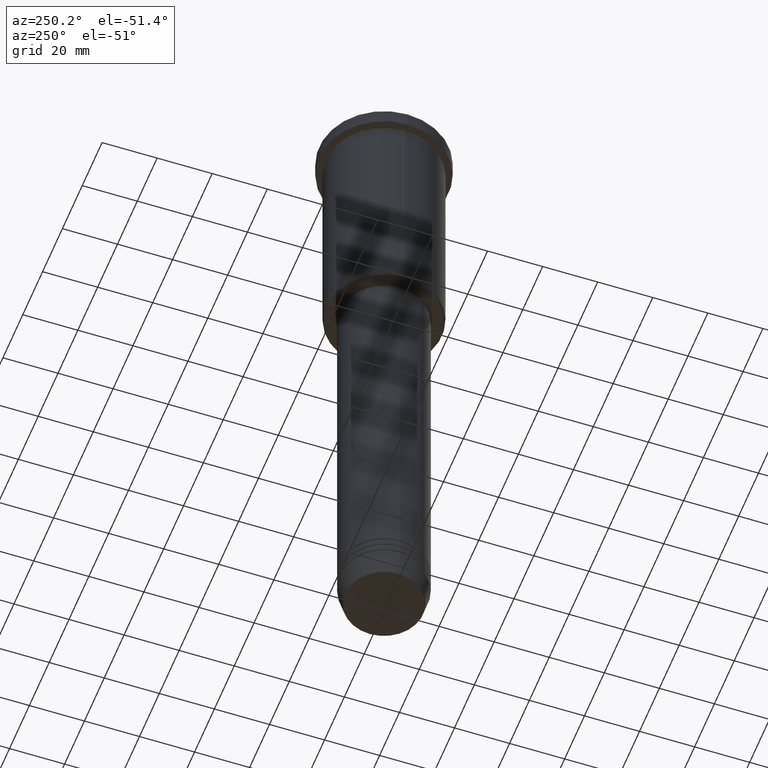
[diagram: clean part render]
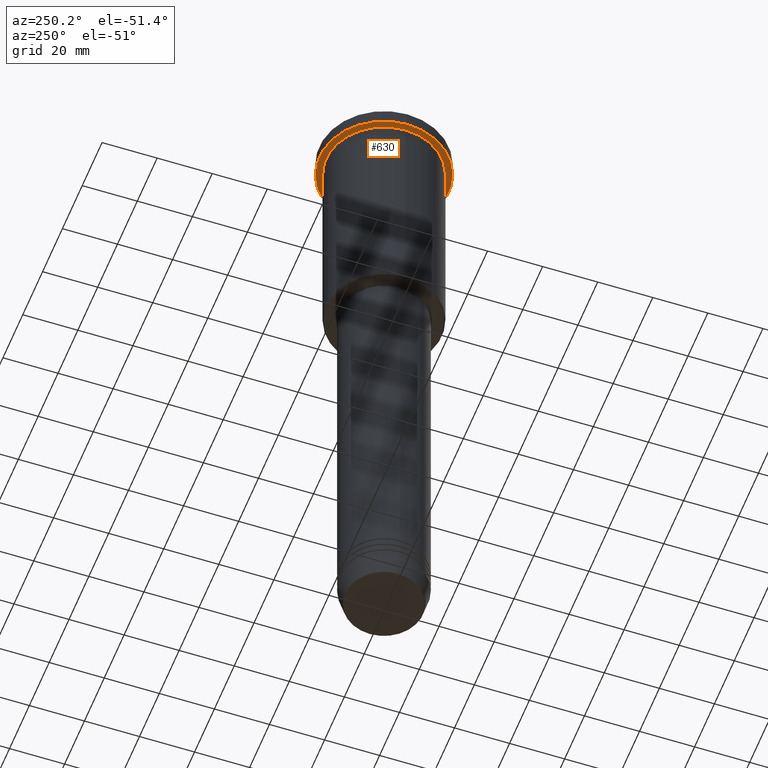
[diagram: same view with one face highlighted and labeled with its STEP entity id]
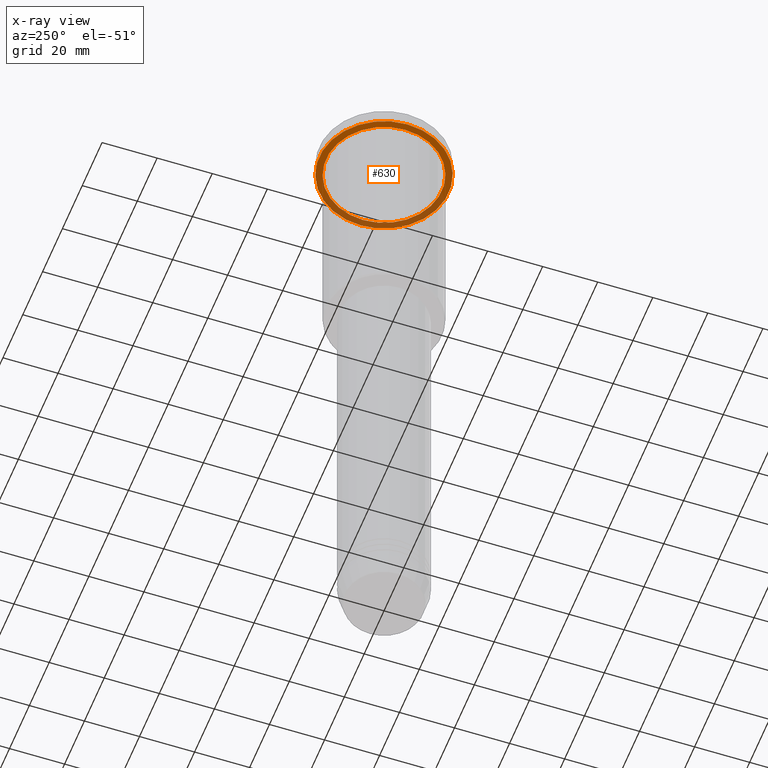
[diagram: x-ray of the same camera — body ghosted, the highlighted face saturated]
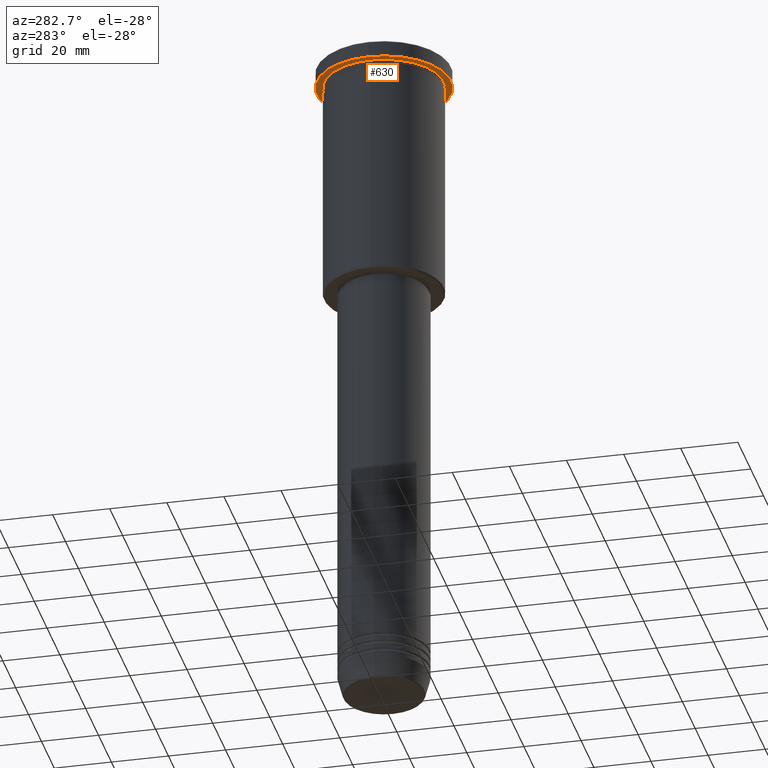
[diagram: same view with one face highlighted and labeled with its STEP entity id]
A machine part, auxiliary view. The second image highlights one B-rep face of the part: STEP entity #630.
The next image is the same camera in x-ray: the body ghosted, the highlighted face saturated — about 37% of this face is hidden behind the body in this view.
A second angle (auxiliary view) of the same face is appended — the face is thin or edge-on in the first view.
In plain terms, the highlighted planar face has unit normal (0, 0, -1).
Its self-contained STEP definition (entity closure, byte-faithful):
#10 = CARTESIAN_POINT ( 'NONE',  ( 0.000000000000000000, 23.50000000000000000, -5.999999999999994671 ) ) ;
#22 = PLANE ( 'NONE',  #933 ) ;
#62 = AXIS2_PLACEMENT_3D ( 'NONE', #506, #524, #333 ) ;
#76 = CIRCLE ( 'NONE', #262, 21.00000000000000000 ) ;
#79 = AXIS2_PLACEMENT_3D ( 'NONE', #821, #360, #817 ) ;
#90 = ORIENTED_EDGE ( 'NONE', *, *, #430, .T. ) ;
#116 = FACE_BOUND ( 'NONE', #658, .T. ) ;
#135 = CARTESIAN_POINT ( 'NONE',  ( -23.50000000000000000, 2.877919977996280320E-15, -5.999999999999994671 ) ) ;
#159 = AXIS2_PLACEMENT_3D ( 'NONE', #801, #256, #979 ) ;
#185 = VERTEX_POINT ( 'NONE', #558 ) ;
#218 = EDGE_CURVE ( 'NONE', #413, #185, #76, .T. ) ;
#256 = DIRECTION ( 'NONE',  ( -0.000000000000000000, -0.000000000000000000, 1.000000000000000000 ) ) ;
#262 = AXIS2_PLACEMENT_3D ( 'NONE', #385, #742, #904 ) ;
#300 = ORIENTED_EDGE ( 'NONE', *, *, #890, .F. ) ;
#301 = DIRECTION ( 'NONE',  ( -1.000000000000000000, 0.000000000000000000, -0.000000000000000000 ) ) ;
#333 = DIRECTION ( 'NONE',  ( -1.000000000000000000, 0.000000000000000000, 0.000000000000000000 ) ) ;
#360 = DIRECTION ( 'NONE',  ( -0.000000000000000000, -0.000000000000000000, 1.000000000000000000 ) ) ;
#385 = CARTESIAN_POINT ( 'NONE',  ( 0.000000000000000000, 0.000000000000000000, -5.999999999999994671 ) ) ;
#413 = VERTEX_POINT ( 'NONE', #873 ) ;
#430 = EDGE_CURVE ( 'NONE', #185, #413, #576, .T. ) ;
#494 = EDGE_LOOP ( 'NONE', ( #1041, #300 ) ) ;
#506 = CARTESIAN_POINT ( 'NONE',  ( 0.000000000000000000, 0.000000000000000000, -5.999999999999994671 ) ) ;
#524 = DIRECTION ( 'NONE',  ( -0.000000000000000000, -0.000000000000000000, 1.000000000000000000 ) ) ;
#558 = CARTESIAN_POINT ( 'NONE',  ( -21.00000000000000000, 0.000000000000000000, -5.999999999999994671 ) ) ;
#576 = CIRCLE ( 'NONE', #62, 21.00000000000000000 ) ;
#599 = CIRCLE ( 'NONE', #79, 23.50000000000000000 ) ;
#630 = ADVANCED_FACE ( 'NONE', ( #116, #830 ), #22, .T. ) ;
#658 = EDGE_LOOP ( 'NONE', ( #90, #1175 ) ) ;
#661 = VERTEX_POINT ( 'NONE', #844 ) ;
#665 = DIRECTION ( 'NONE',  ( 0.000000000000000000, 0.000000000000000000, -1.000000000000000000 ) ) ;
#742 = DIRECTION ( 'NONE',  ( -0.000000000000000000, -0.000000000000000000, 1.000000000000000000 ) ) ;
#801 = CARTESIAN_POINT ( 'NONE',  ( 0.000000000000000000, 0.000000000000000000, -5.999999999999994671 ) ) ;
#817 = DIRECTION ( 'NONE',  ( 1.000000000000000000, 0.000000000000000000, 0.000000000000000000 ) ) ;
#821 = CARTESIAN_POINT ( 'NONE',  ( 0.000000000000000000, 0.000000000000000000, -5.999999999999994671 ) ) ;
#830 = FACE_OUTER_BOUND ( 'NONE', #494, .T. ) ;
#844 = CARTESIAN_POINT ( 'NONE',  ( 23.50000000000000000, 0.000000000000000000, -5.999999999999994671 ) ) ;
#873 = CARTESIAN_POINT ( 'NONE',  ( 21.00000000000000000, 2.571758278209441661E-15, -5.999999999999994671 ) ) ;
#890 = EDGE_CURVE ( 'NONE', #1023, #661, #1100, .T. ) ;
#892 = EDGE_CURVE ( 'NONE', #661, #1023, #599, .T. ) ;
#904 = DIRECTION ( 'NONE',  ( -1.000000000000000000, 0.000000000000000000, 0.000000000000000000 ) ) ;
#933 = AXIS2_PLACEMENT_3D ( 'NONE', #10, #665, #301 ) ;
#979 = DIRECTION ( 'NONE',  ( 1.000000000000000000, 0.000000000000000000, 0.000000000000000000 ) ) ;
#1023 = VERTEX_POINT ( 'NONE', #135 ) ;
#1041 = ORIENTED_EDGE ( 'NONE', *, *, #892, .F. ) ;
#1100 = CIRCLE ( 'NONE', #159, 23.50000000000000000 ) ;
#1175 = ORIENTED_EDGE ( 'NONE', *, *, #218, .T. ) ;